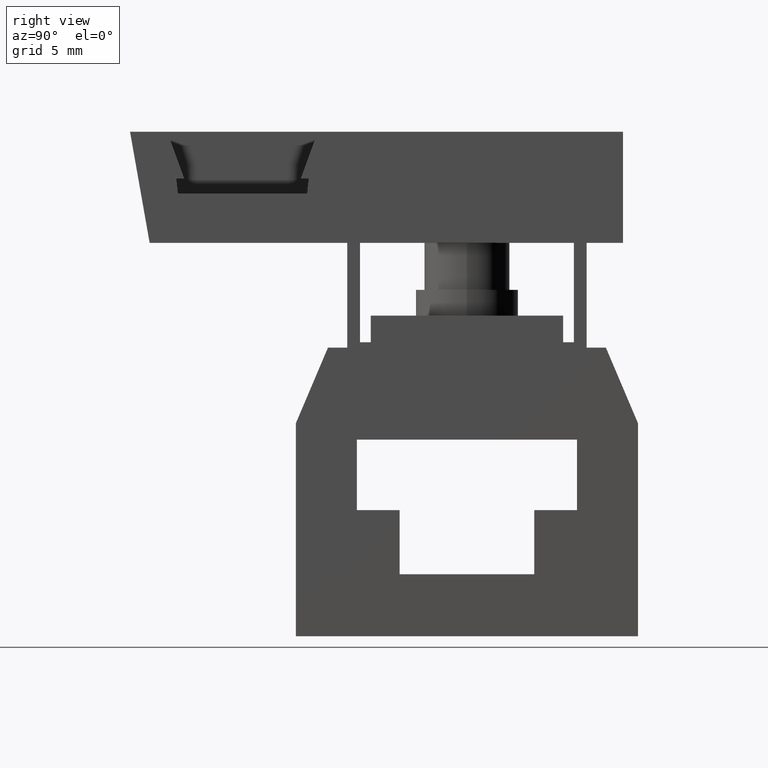
[diagram: clean part render]
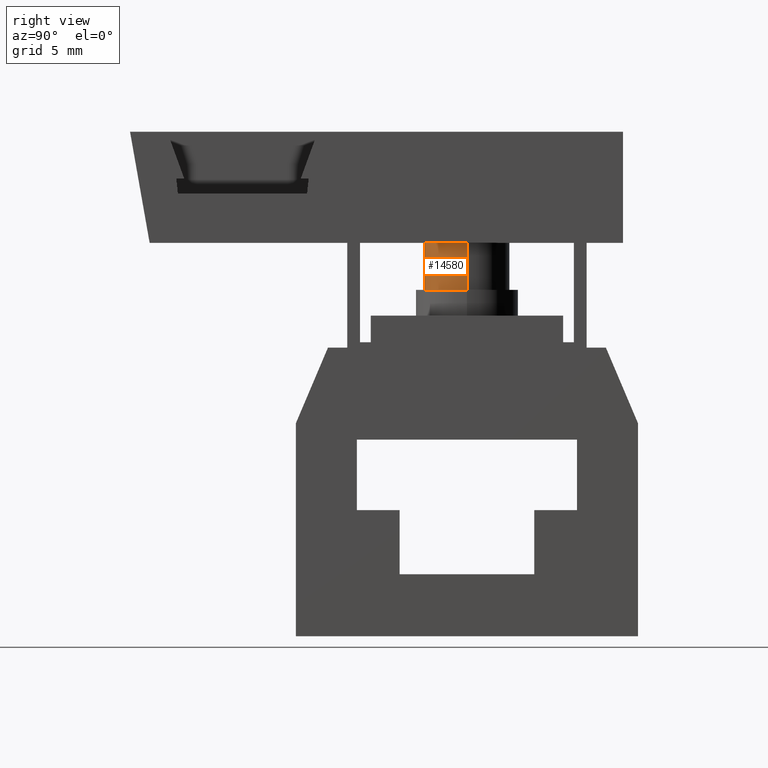
[diagram: same view with one face highlighted and labeled with its STEP entity id]
A machine part, right view. The second image highlights one B-rep face of the part: STEP entity #14580.
In plain terms, the highlighted cylindrical surface (partial cylindrical patch) has radius 2 mm, axis along (0, 0, 1).
Its self-contained STEP definition (entity closure, byte-faithful):
#12350=CARTESIAN_POINT('',(-3.5,23.9,8.));
#12360=DIRECTION('',(0.,1.,0.));
#12370=DIRECTION('',(1.,0.,0.));
#12380=AXIS2_PLACEMENT_3D('',#12350,#12360,#12370);
#12390=CIRCLE('',#12380,2.);
#12400=CARTESIAN_POINT('',(-1.5,23.9,8.));
#12410=VERTEX_POINT('',#12400);
#12420=CARTESIAN_POINT('',(-5.5,23.9,8.));
#12430=VERTEX_POINT('',#12420);
#12460=EDGE_CURVE('',#12430,#12410,#12390,.T.);
#14270=CARTESIAN_POINT('',(-3.5,20.05,8.));
#14280=DIRECTION('',(0.,1.,0.));
#14290=DIRECTION('',(1.,0.,0.));
#14300=AXIS2_PLACEMENT_3D('',#14270,#14280,#14290);
#14310=CYLINDRICAL_SURFACE('',#14300,2.);
#14320=CARTESIAN_POINT('',(-5.5,20.05,8.));
#14330=DIRECTION('',(0.,1.,0.));
#14340=VECTOR('',#14330,1.);
#14350=LINE('',#14320,#14340);
#14360=CARTESIAN_POINT('',(-5.5,21.7,8.));
#14370=VERTEX_POINT('',#14360);
#14380=EDGE_CURVE('',#14370,#12430,#14350,.T.);
#14390=ORIENTED_EDGE('',*,*,#14380,.F.);
#14400=ORIENTED_EDGE('',*,*,#12460,.F.);
#14410=CARTESIAN_POINT('',(-1.5,20.05,8.));
#14420=DIRECTION('',(0.,1.,0.));
#14430=VECTOR('',#14420,1.);
#14440=LINE('',#14410,#14430);
#14450=CARTESIAN_POINT('',(-1.5,21.7,8.));
#14460=VERTEX_POINT('',#14450);
#14470=EDGE_CURVE('',#14460,#12410,#14440,.T.);
#14480=ORIENTED_EDGE('',*,*,#14470,.T.);
#14490=CARTESIAN_POINT('',(-3.5,21.7,8.));
#14500=DIRECTION('',(0.,1.,0.));
#14510=DIRECTION('',(1.,0.,0.));
#14520=AXIS2_PLACEMENT_3D('',#14490,#14500,#14510);
#14530=CIRCLE('',#14520,2.);
#14540=EDGE_CURVE('',#14370,#14460,#14530,.T.);
#14550=ORIENTED_EDGE('',*,*,#14540,.T.);
#14560=EDGE_LOOP('',(#14550,#14480,#14400,#14390));
#14570=FACE_OUTER_BOUND('',#14560,.T.);
#14580=ADVANCED_FACE('',(#14570),#14310,.T.);